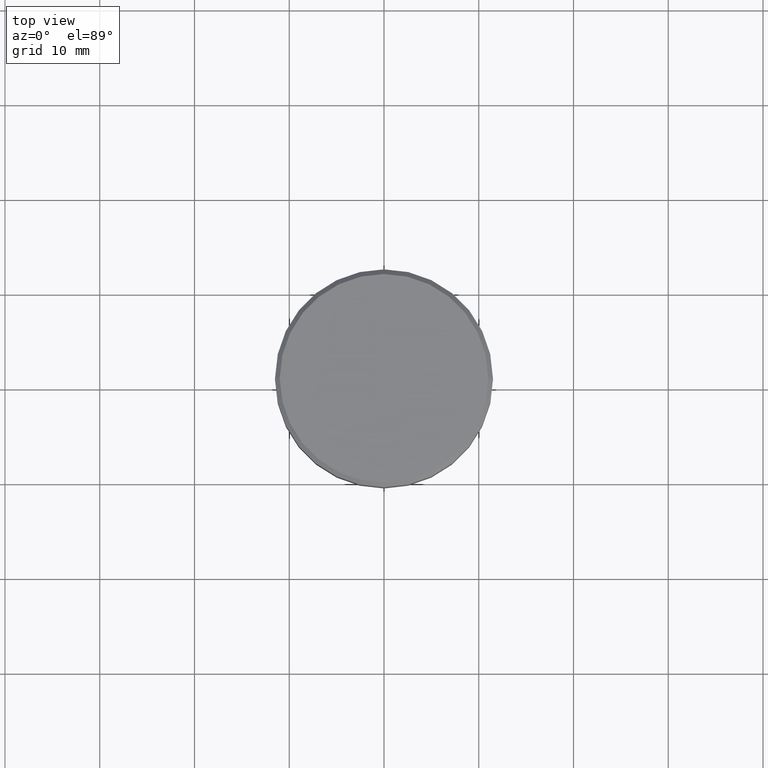
[diagram: clean part render]
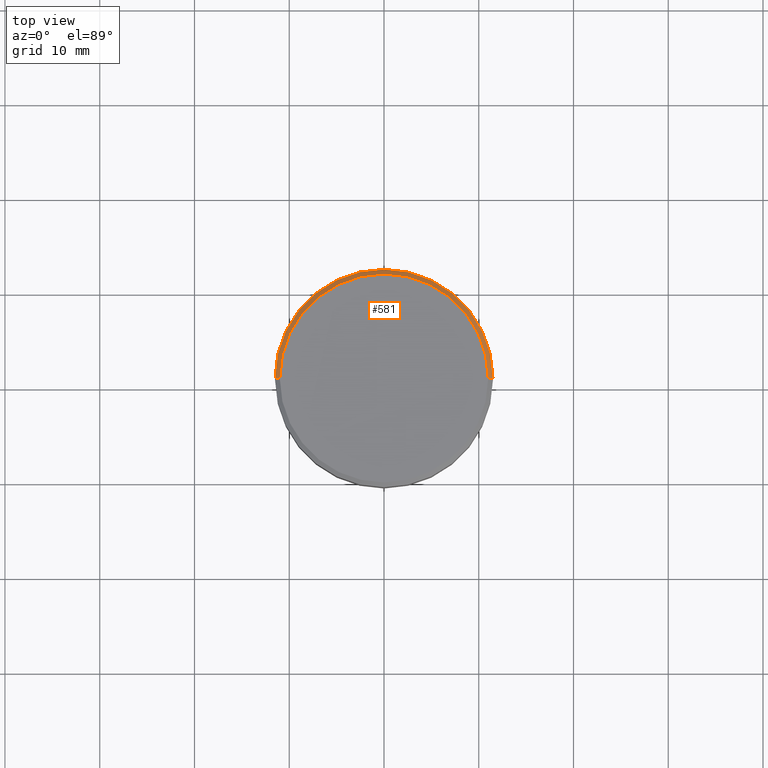
[diagram: same view with one face highlighted and labeled with its STEP entity id]
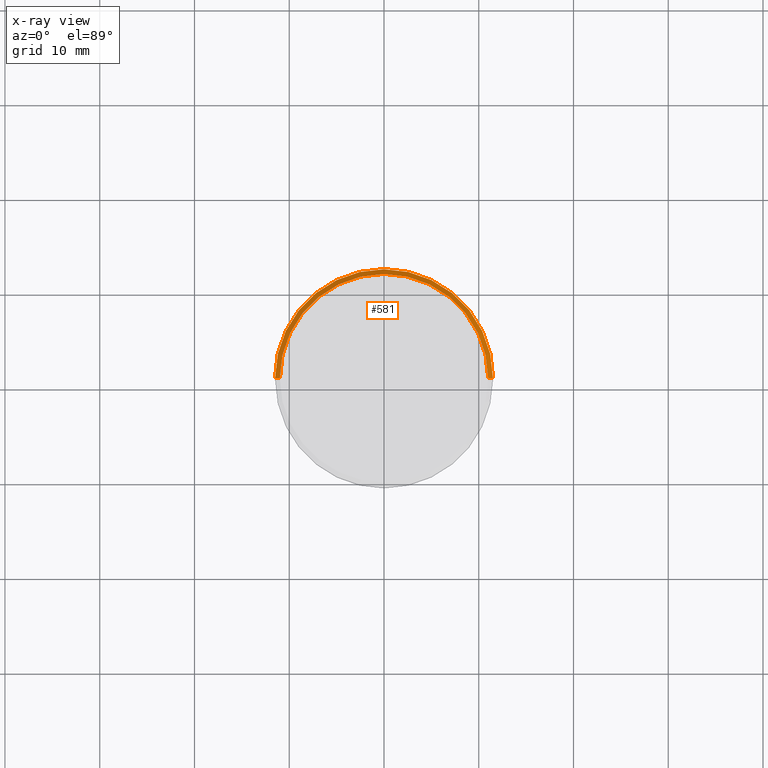
[diagram: x-ray of the same camera — body ghosted, the highlighted face saturated]
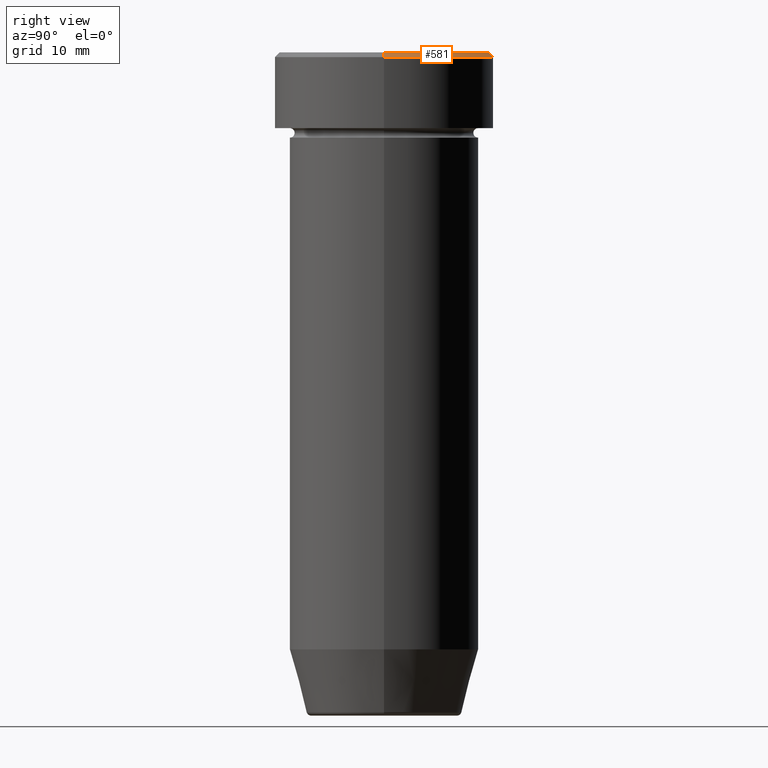
[diagram: same view with one face highlighted and labeled with its STEP entity id]
A machine part, top view. The second image highlights one B-rep face of the part: STEP entity #581.
The next image is the same camera in x-ray: the body ghosted, the highlighted face saturated — about 0% of this face is hidden behind the body in this view.
A second angle (right view) of the same face is appended — the face is thin or edge-on in the first view.
In plain terms, the highlighted conical surface has half-angle 45 deg.
Its self-contained STEP definition (entity closure, byte-faithful):
#13 = CARTESIAN_POINT ( 'NONE',  ( -11.50000000000000000, 1.408343819019456176E-15, -0.5000000000000073275 ) ) ;
#33 = CIRCLE ( 'NONE', #517, 11.00000000000000000 ) ;
#51 = LINE ( 'NONE', #509, #582 ) ;
#56 = ORIENTED_EDGE ( 'NONE', *, *, #224, .F. ) ;
#62 = VERTEX_POINT ( 'NONE', #315 ) ;
#69 = CARTESIAN_POINT ( 'NONE',  ( 0.000000000000000000, 0.000000000000000000, -0.5000000000000073275 ) ) ;
#84 = VERTEX_POINT ( 'NONE', #452 ) ;
#86 = VECTOR ( 'NONE', #508, 1000.000000000000000 ) ;
#113 = DIRECTION ( 'NONE',  ( 1.000000000000000000, 0.000000000000000000, 0.000000000000000000 ) ) ;
#118 = CARTESIAN_POINT ( 'NONE',  ( 0.000000000000000000, 0.000000000000000000, 0.000000000000000000 ) ) ;
#170 = DIRECTION ( 'NONE',  ( 1.000000000000000000, 0.000000000000000000, 0.000000000000000000 ) ) ;
#198 = FACE_OUTER_BOUND ( 'NONE', #253, .T. ) ;
#199 = LINE ( 'NONE', #239, #86 ) ;
#222 = ORIENTED_EDGE ( 'NONE', *, *, #249, .T. ) ;
#224 = EDGE_CURVE ( 'NONE', #62, #572, #199, .T. ) ;
#239 = CARTESIAN_POINT ( 'NONE',  ( -11.00000000000000000, 0.000000000000000000, 0.000000000000000000 ) ) ;
#249 = EDGE_CURVE ( 'NONE', #311, #84, #51, .T. ) ;
#253 = EDGE_LOOP ( 'NONE', ( #442, #222, #415, #56 ) ) ;
#263 = AXIS2_PLACEMENT_3D ( 'NONE', #69, #438, #170 ) ;
#278 = CARTESIAN_POINT ( 'NONE',  ( 11.00000000000000000, 1.377727649040772389E-15, 0.000000000000000000 ) ) ;
#281 = CARTESIAN_POINT ( 'NONE',  ( 0.000000000000000000, 0.000000000000000000, 0.000000000000000000 ) ) ;
#290 = DIRECTION ( 'NONE',  ( 0.7071067811865426878, 8.659560562354874926E-17, -0.7071067811865524577 ) ) ;
#311 = VERTEX_POINT ( 'NONE', #278 ) ;
#315 = CARTESIAN_POINT ( 'NONE',  ( -11.00000000000000000, 0.000000000000000000, 0.000000000000000000 ) ) ;
#342 = EDGE_CURVE ( 'NONE', #572, #84, #454, .T. ) ;
#375 = DIRECTION ( 'NONE',  ( 0.000000000000000000, 0.000000000000000000, -1.000000000000000000 ) ) ;
#378 = AXIS2_PLACEMENT_3D ( 'NONE', #281, #375, #384 ) ;
#384 = DIRECTION ( 'NONE',  ( -1.000000000000000000, 0.000000000000000000, 0.000000000000000000 ) ) ;
#387 = EDGE_CURVE ( 'NONE', #311, #62, #33, .T. ) ;
#415 = ORIENTED_EDGE ( 'NONE', *, *, #342, .F. ) ;
#438 = DIRECTION ( 'NONE',  ( 0.000000000000000000, 0.000000000000000000, -1.000000000000000000 ) ) ;
#442 = ORIENTED_EDGE ( 'NONE', *, *, #387, .F. ) ;
#452 = CARTESIAN_POINT ( 'NONE',  ( 11.50000000000000000, 0.000000000000000000, -0.5000000000000073275 ) ) ;
#454 = CIRCLE ( 'NONE', #263, 11.50000000000000000 ) ;
#486 = DIRECTION ( 'NONE',  ( -0.000000000000000000, -0.000000000000000000, 1.000000000000000000 ) ) ;
#508 = DIRECTION ( 'NONE',  ( -0.7071067811865426878, 0.000000000000000000, -0.7071067811865524577 ) ) ;
#509 = CARTESIAN_POINT ( 'NONE',  ( 11.00000000000000000, 1.347111479062088405E-15, 0.000000000000000000 ) ) ;
#517 = AXIS2_PLACEMENT_3D ( 'NONE', #118, #486, #113 ) ;
#567 = CONICAL_SURFACE ( 'NONE', #378, 11.00000000000000000, 0.7853981633974415066 ) ;
#572 = VERTEX_POINT ( 'NONE', #13 ) ;
#581 = ADVANCED_FACE ( 'NONE', ( #198 ), #567, .T. ) ;
#582 = VECTOR ( 'NONE', #290, 1000.000000000000000 ) ;